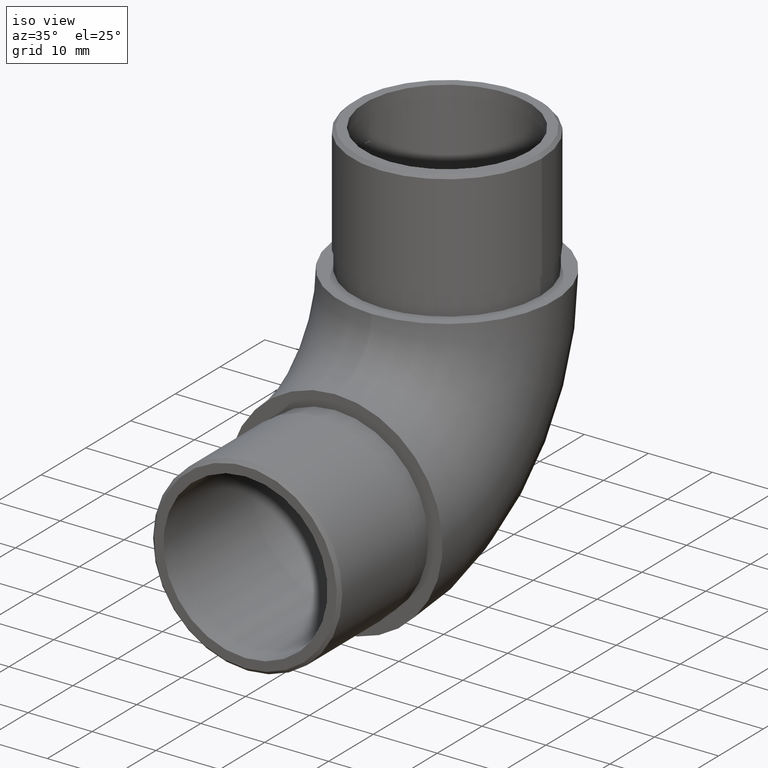
[diagram: clean part render]
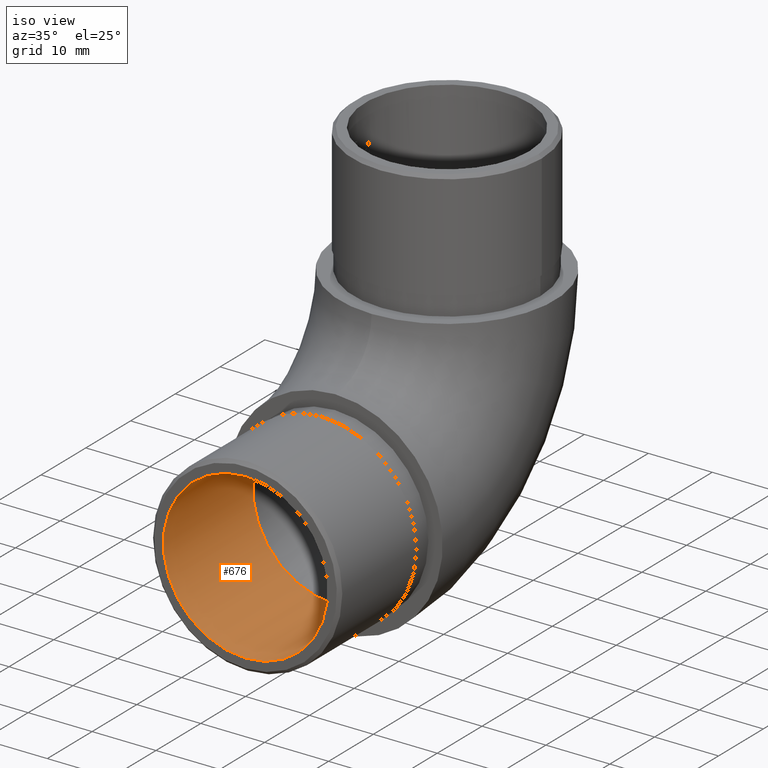
[diagram: same view with one face highlighted and labeled with its STEP entity id]
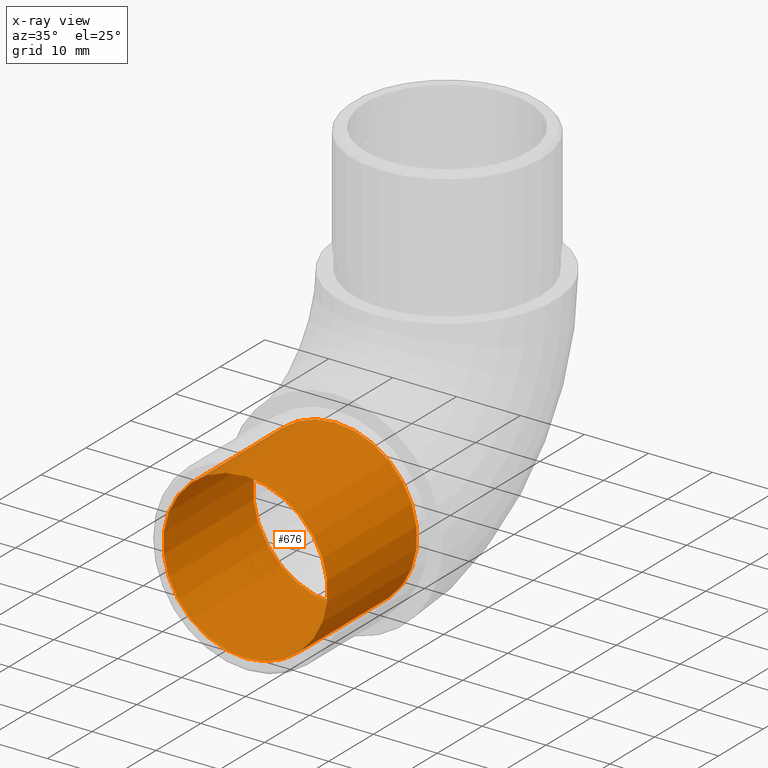
[diagram: x-ray of the same camera — body ghosted, the highlighted face saturated]
A machine part, iso view. The second image highlights one B-rep face of the part: STEP entity #676.
The next image is the same camera in x-ray: the body ghosted, the highlighted face saturated — about 0% of this face is hidden behind the body in this view.
In plain terms, the highlighted cylindrical surface (bore or boss wall) has radius 12.85 mm, axis along (-0, 1, -0).
Its self-contained STEP definition (entity closure, byte-faithful):
#676 = ADVANCED_FACE ( 'NONE', ( #2690, #8956 ), #5562, .F. ) ;
#1217 = AXIS2_PLACEMENT_3D ( 'NONE', #4176, #13480, #1964 ) ;
#1403 = DIRECTION ( 'NONE',  ( 0.0000000000000000000, 0.0000000000000000000, 1.000000000000000000 ) ) ;
#1600 = EDGE_LOOP ( 'NONE', ( #7335 ) ) ;
#1964 = DIRECTION ( 'NONE',  ( 0.0000000000000000000, 0.0000000000000000000, -1.000000000000000000 ) ) ;
#2690 = FACE_OUTER_BOUND ( 'NONE', #1600, .T. ) ;
#3394 = EDGE_CURVE ( 'NONE', #11138, #11138, #9096, .T. ) ;
#3546 = CARTESIAN_POINT ( 'NONE',  ( 0.0000000000000000000, -3.469446951953614200E-015, 29.70000000000000300 ) ) ;
#3576 = DIRECTION ( 'NONE',  ( 0.0000000000000000000, 0.0000000000000000000, 1.000000000000000000 ) ) ;
#4176 = CARTESIAN_POINT ( 'NONE',  ( 0.0000000000000000000, -20.00000000000000000, 16.85000000000000500 ) ) ;
#5463 = EDGE_CURVE ( 'NONE', #8430, #8430, #13780, .T. ) ;
#5562 = CYLINDRICAL_SURFACE ( 'NONE', #8872, 12.85000000000000000 ) ;
#6047 = EDGE_LOOP ( 'NONE', ( #12204 ) ) ;
#7335 = ORIENTED_EDGE ( 'NONE', *, *, #5463, .T. ) ;
#7921 = DIRECTION ( 'NONE',  ( 0.0000000000000000000, 1.000000000000000000, 0.0000000000000000000 ) ) ;
#8430 = VERTEX_POINT ( 'NONE', #3546 ) ;
#8872 = AXIS2_PLACEMENT_3D ( 'NONE', #9593, #11644, #1403 ) ;
#8956 = FACE_OUTER_BOUND ( 'NONE', #6047, .T. ) ;
#9096 = CIRCLE ( 'NONE', #1217, 12.85000000000000000 ) ;
#9593 = CARTESIAN_POINT ( 'NONE',  ( 0.0000000000000000000, -3.000000000000000000, 16.85000000000000500 ) ) ;
#10469 = CARTESIAN_POINT ( 'NONE',  ( 0.0000000000000000000, -3.469446951953614200E-015, 16.85000000000000500 ) ) ;
#11138 = VERTEX_POINT ( 'NONE', #14781 ) ;
#11644 = DIRECTION ( 'NONE',  ( -0.0000000000000000000, 1.000000000000000000, -0.0000000000000000000 ) ) ;
#12204 = ORIENTED_EDGE ( 'NONE', *, *, #3394, .T. ) ;
#13480 = DIRECTION ( 'NONE',  ( 0.0000000000000000000, -1.000000000000000000, 0.0000000000000000000 ) ) ;
#13780 = CIRCLE ( 'NONE', #14553, 12.85000000000000000 ) ;
#14553 = AXIS2_PLACEMENT_3D ( 'NONE', #10469, #7921, #3576 ) ;
#14781 = CARTESIAN_POINT ( 'NONE',  ( 0.0000000000000000000, -20.00000000000000000, 4.000000000000003600 ) ) ;